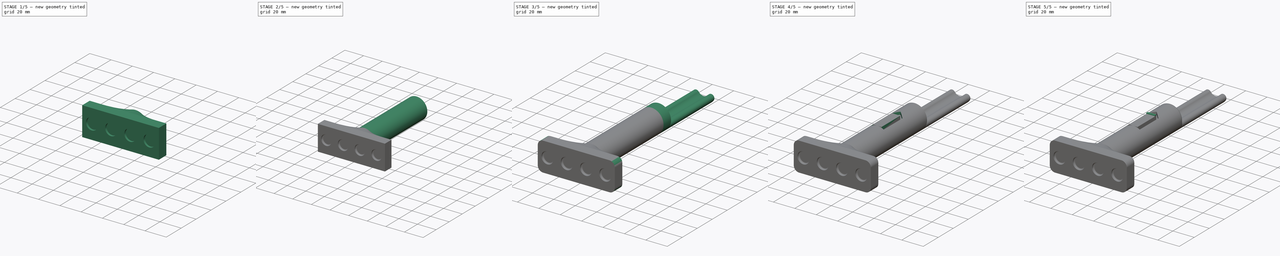
[diagram: build sequence overview — one tinted view per stage of 5, left to right]
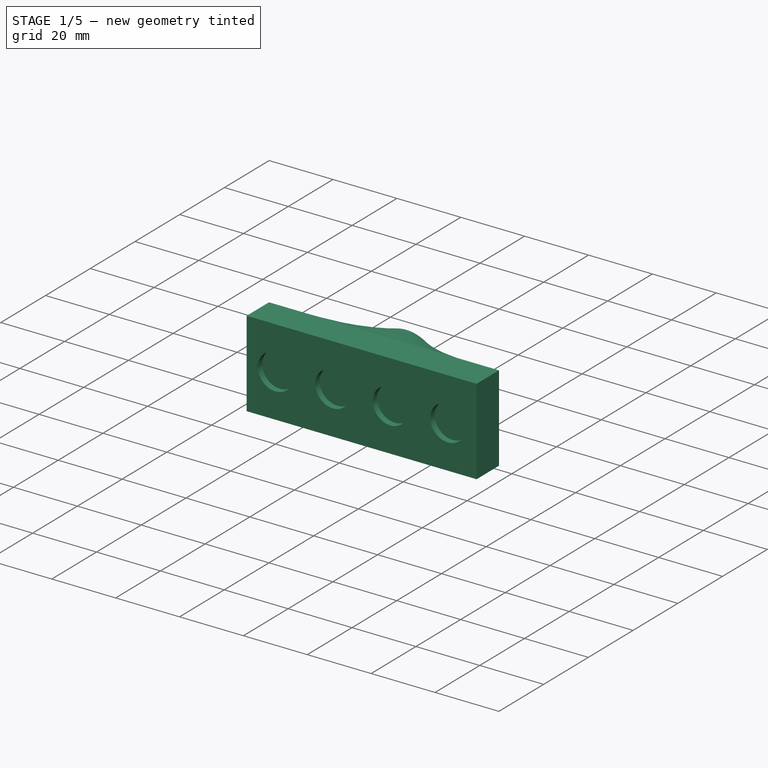
[diagram: stage 1 of 5 — iso view after this stage's code; geometry added in this stage tinted green]
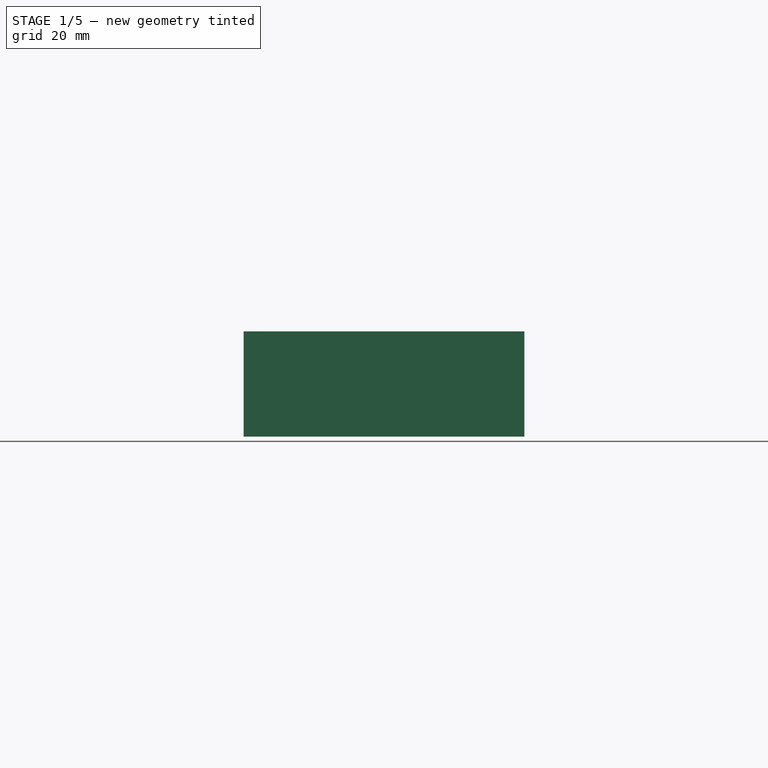
[diagram: stage 1 of 5 — front view after this stage's code; geometry added in this stage tinted green]
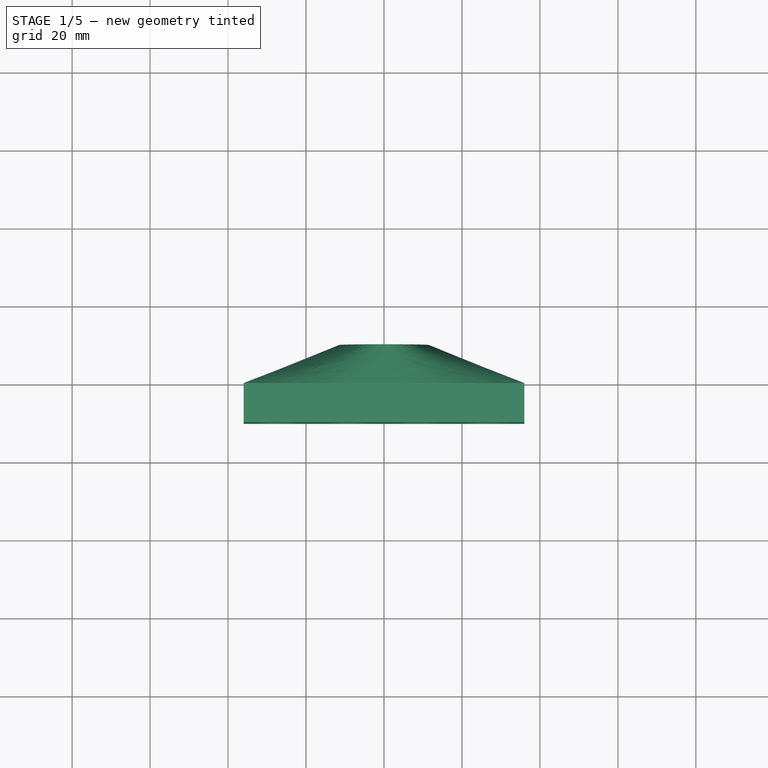
[diagram: stage 1 of 5 — top view after this stage's code; geometry added in this stage tinted green]
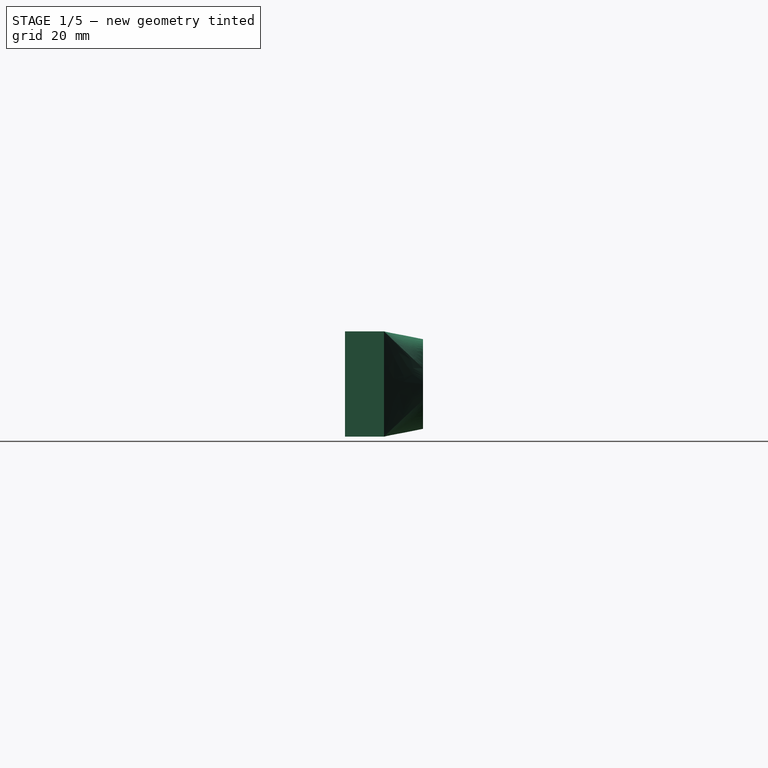
[diagram: stage 1 of 5 — right view after this stage's code; geometry added in this stage tinted green]
FCSTD DOCUMENT  (FreeCAD 0.18R4 (GitTag))
Label: plunger
License: All rights reserved
LicenseURL: http://en.wikipedia.org/wiki/All_rights_reserved
objects: Sketcher::SketchObject×13, PartDesign::Pad×6, PartDesign::Fillet×6, PartDesign::Pocket×4, PartDesign::LinearPattern×1, PartDesign::AdditiveLoft×1, PartDesign::Body×1
note: 43 computed .brp shape members not serialized (recipe doc carries the construction recipe); baked Part::Feature solids carry a one-line shape summary decoded from their .brp

FEATURE [Sketcher::SketchObject] Sketch
  MapMode = 5
  Placement = pos=(0,0,0) rot=(1,0,0;1.5708rad)
  Support = -> [XZ_Plane]
  sketch-geometry (4):
    g0: LineSegment StartX=-36 StartY=13.5 StartZ=0 EndX=36 EndY=13.5 EndZ=0
    g1: LineSegment StartX=36 StartY=13.5 StartZ=0 EndX=36 EndY=-13.5 EndZ=0
    g2: LineSegment StartX=36 StartY=-13.5 StartZ=0 EndX=-36 EndY=-13.5 EndZ=0
    g3: LineSegment StartX=-36 StartY=-13.5 StartZ=0 EndX=-36 EndY=13.5 EndZ=0
  constraints (10):
    c: Coincident(g0,g1)
    c: Coincident(g1,g2)
    c: Coincident(g2,g3)
    c: Coincident(g3,g0)
    c: Horizontal(g2)
    c: Vertical(g3)
    c: DistanceY(g1,g1) = 27
    c: DistanceX(g0,g0) = 72
    c: Symmetric(g0,g0,g-2)
    c: Symmetric(g0,g1,g-1)
FEATURE [PartDesign::Pad] Pad
  Length = 10
  Length2 = 100
  Placement = pos=(0,0,0) rot=(1,0,0;1.5708rad)
  Profile = -> Sketch
  Type = 0
FEATURE [Sketcher::SketchObject] Sketch001
  MapMode = 5
  Placement = pos=(0,-10,6.7e-15) rot=(1,0,0;1.5708rad)
  Support = -> [Pad]
  sketch-geometry (1):
    g0: Circle CenterX=-27 CenterY=0 CenterZ=0 NormalX=0 NormalY=0 NormalZ=1 AngleXU=0 Radius=5.5
  constraints (3):
    c: PointOnObject(g0,g-1)
    c: Radius(g0) = 5.5
    c: Distance(g-1,g0) = 27
FEATURE [PartDesign::Pocket] Pocket
  BaseFeature = -> Pad
  Length = 2
  Length2 = 100
  Placement = pos=(0,0,0) rot=(1,0,0;1.5708rad)
  Profile = -> Sketch001
  Type = 0
FEATURE [PartDesign::LinearPattern] LinearPattern
  BaseFeature = -> Pocket
  Direction = -> Sketch001 [H_Axis]
  Length = 54
  Occurrences = 4
  Originals = -> [Pocket]
  Placement = pos=(0,0,0) rot=(1,0,0;1.5708rad)
FEATURE [Sketcher::SketchObject] Sketch002
  Placement = pos=(0,10,0) rot=(-1,0,0;4.71239rad)
  sketch-geometry (1):
    g0: Circle CenterX=0 CenterY=0 CenterZ=0 NormalX=0 NormalY=0 NormalZ=1 AngleXU=0 Radius=11.5
  constraints (3):
    c: Radius(g0) = 11.5
    c: PointOnObject(g0,g-1)
    c: PointOnObject(g0,g-2)
FEATURE [Sketcher::SketchObject] Sketch003
  MapMode = 5
  Placement = pos=(0,0,0) rot=(-1,0,0;1.5708rad)
  Support = -> [LinearPattern]
  sketch-geometry (4):
    g0: LineSegment StartX=-36 StartY=13.5 StartZ=0 EndX=36 EndY=13.5 EndZ=0
    g1: LineSegment StartX=36 StartY=13.5 StartZ=0 EndX=36 EndY=-13.5 EndZ=0
    g2: LineSegment StartX=36 StartY=-13.5 StartZ=0 EndX=-36 EndY=-13.5 EndZ=0
    g3: LineSegment StartX=-36 StartY=-13.5 StartZ=0 EndX=-36 EndY=13.5 EndZ=0
  constraints (10):
    c: Coincident(g0,g1)
    c: Coincident(g1,g2)
    c: Coincident(g2,g3)
    c: Coincident(g3,g0)
    c: Horizontal(g2)
    c: Vertical(g3)
    c: Symmetric(g0,g0,g-2)
    c: Symmetric(g0,g1,g-1)
    c: DistanceY(g1,g1) = 27
    c: DistanceX(g0,g0) = 72
FEATURE [PartDesign::AdditiveLoft] AdditiveLoft
  BaseFeature = -> LinearPattern
  Closed = true
  Placement = pos=(0,0,0) rot=(1,0,0;1.5708rad)
  Profile = -> Sketch003
  Ruled = true
  Sections = -> [Sketch002]
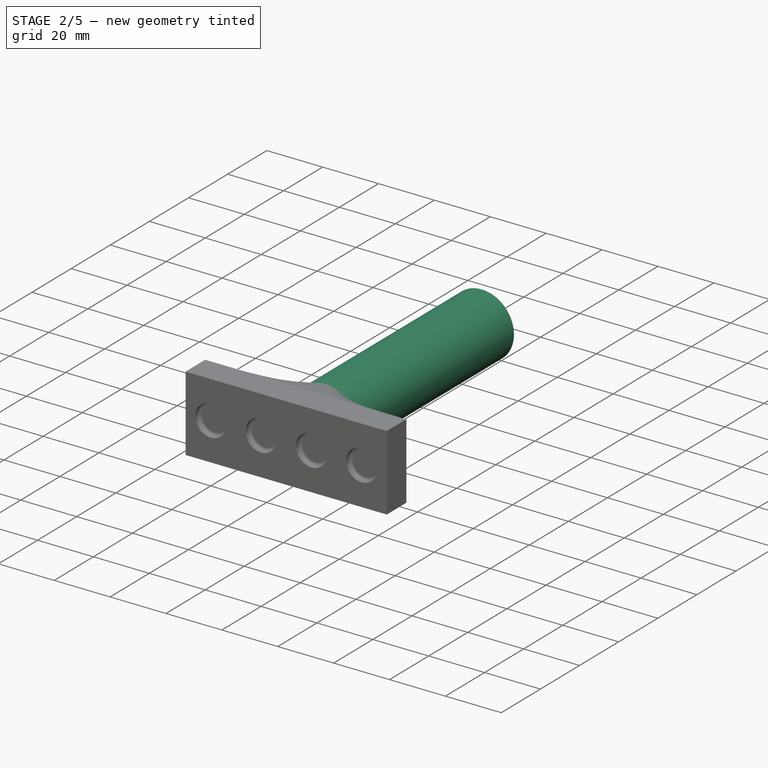
[diagram: stage 2 of 5 — iso view after this stage's code; geometry added in this stage tinted green]
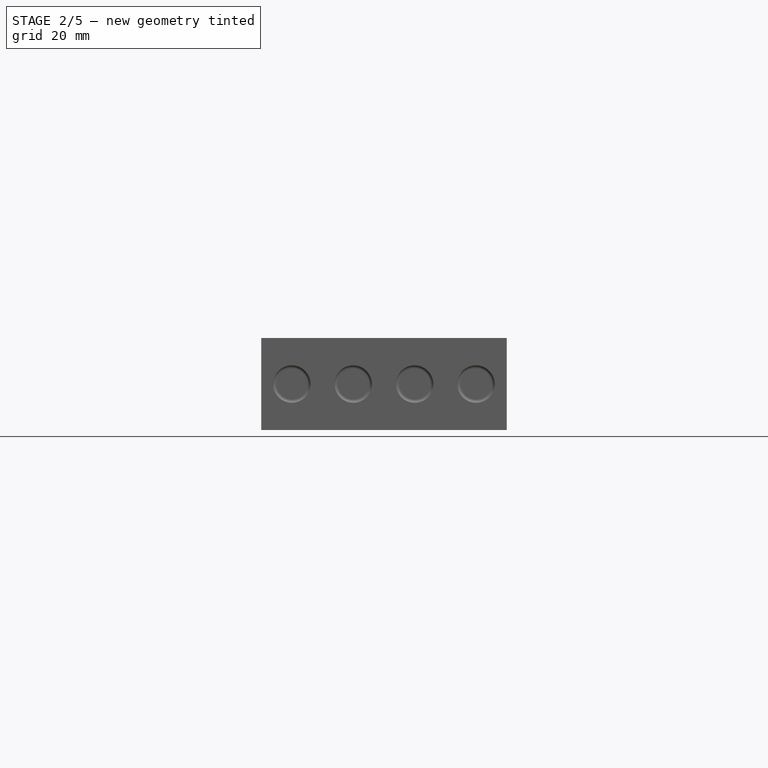
[diagram: stage 2 of 5 — front view after this stage's code; geometry added in this stage tinted green]
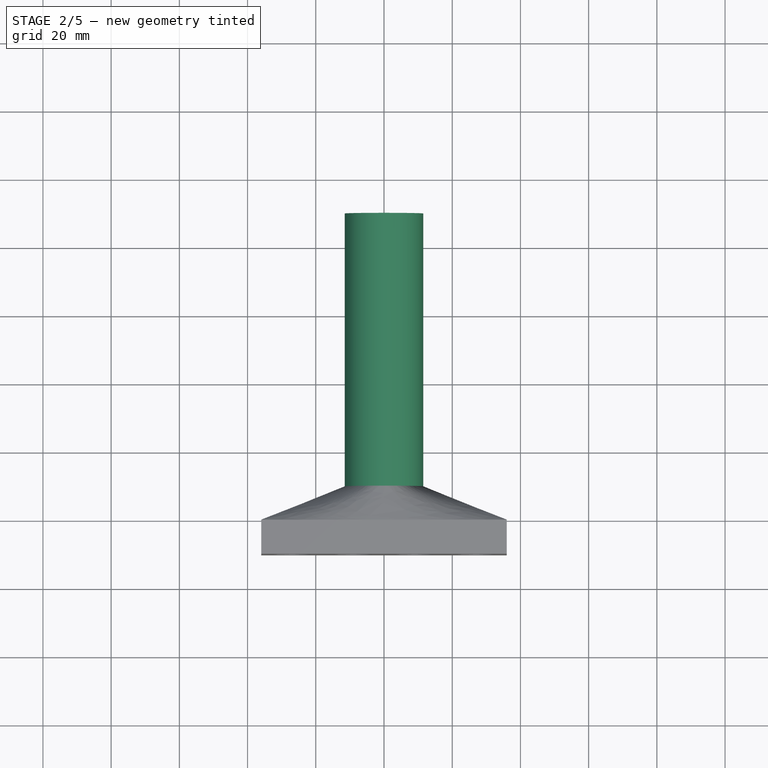
[diagram: stage 2 of 5 — top view after this stage's code; geometry added in this stage tinted green]
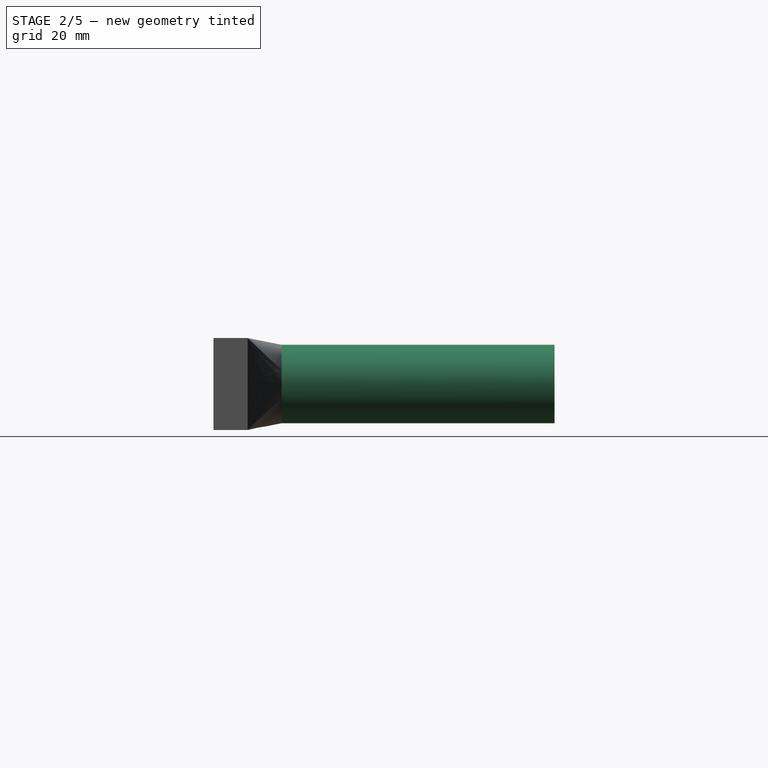
[diagram: stage 2 of 5 — right view after this stage's code; geometry added in this stage tinted green]
FEATURE [PartDesign::Fillet] Fillet
  Base = -> AdditiveLoft [Edge33,Edge35,Edge29,Edge31]
  BaseFeature = -> AdditiveLoft
  Placement = pos=(0,0,0) rot=(1,0,0;1.5708rad)
  Radius = 1
FEATURE [Sketcher::SketchObject] Sketch004
  MapMode = 5
  Placement = pos=(0,10,-5.8e-15) rot=(-1,0,0;1.5708rad)
  Support = -> [Fillet]
  sketch-geometry (1):
    g0: Circle CenterX=0 CenterY=0 CenterZ=0 NormalX=0 NormalY=0 NormalZ=1 AngleXU=0 Radius=11.5
  constraints (3):
    c: PointOnObject(g0,g-2)
    c: PointOnObject(g0,g-1)
    c: Radius(g0) = 11.5
FEATURE [PartDesign::Pad] Pad001
  BaseFeature = -> Fillet
  Length = 80
  Length2 = 100
  Placement = pos=(0,0,0) rot=(1,0,0;1.5708rad)
  Profile = -> Sketch004
  Type = 0
FEATURE [Sketcher::SketchObject] Sketch005
  MapMode = 5
  Placement = pos=(0,90,-7.21e-14) rot=(-1,0,0;1.5708rad)
  Support = -> [Pad001]
  sketch-geometry (2):
    g0: ArcOfCircle CenterX=0 CenterY=0 CenterZ=0 NormalX=0 NormalY=0 NormalZ=1 AngleXU=0 Radius=9 StartAngle=3.54102 EndAngle=5.88376
    g1: LineSegment StartX=8.29156 StartY=-3.5 StartZ=0 EndX=-8.29156 EndY=-3.5 EndZ=0
  constraints (8):
    c: PointOnObject(g0,g-1)
    c: Radius(g0) = 9
    c: Horizontal(g1)
    c: Distance(g0,g1) = 3.5
    c: PointOnObject(g1,g0)
    c: Coincident(g0,g1)
    c: Coincident(g0,g1)
    c: Symmetric(g0,g0,g-2)
FEATURE [PartDesign::Pocket] Pocket001
  BaseFeature = -> Pad001
  Length = 70
  Length2 = 100
  Placement = pos=(0,0,0) rot=(1,0,0;1.5708rad)
  Profile = -> Sketch005
  Type = 0
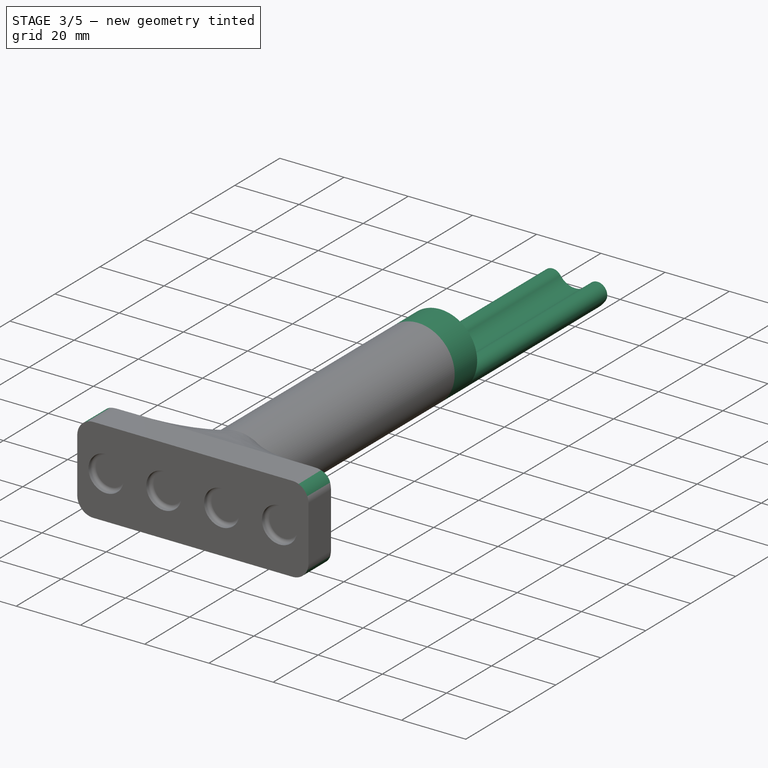
[diagram: stage 3 of 5 — iso view after this stage's code; geometry added in this stage tinted green]
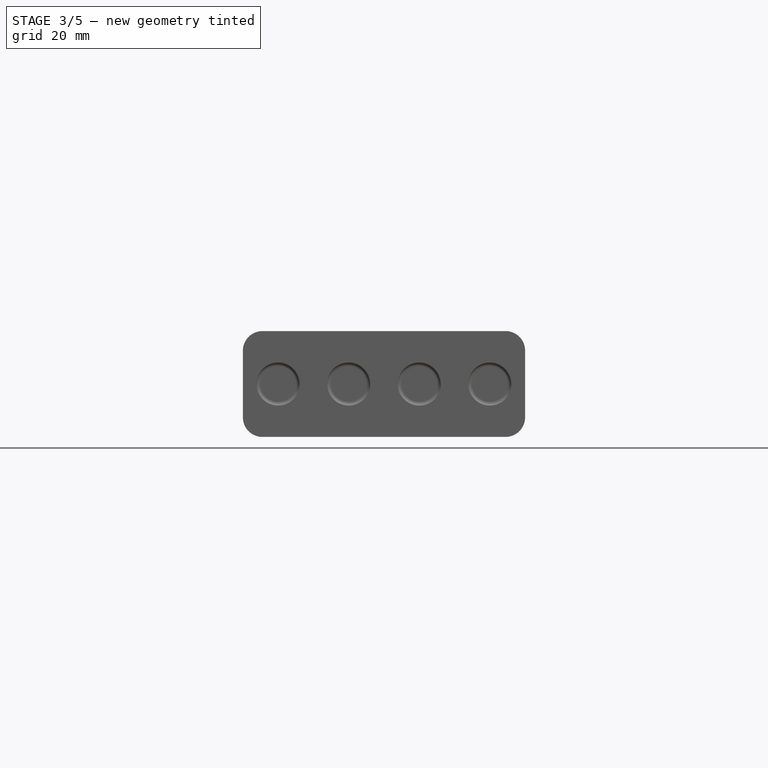
[diagram: stage 3 of 5 — front view after this stage's code; geometry added in this stage tinted green]
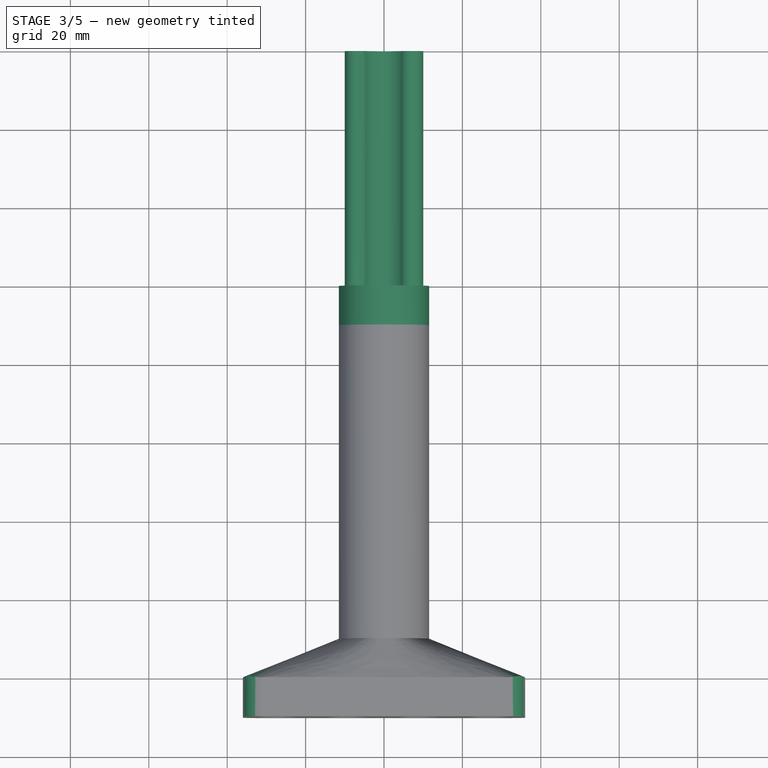
[diagram: stage 3 of 5 — top view after this stage's code; geometry added in this stage tinted green]
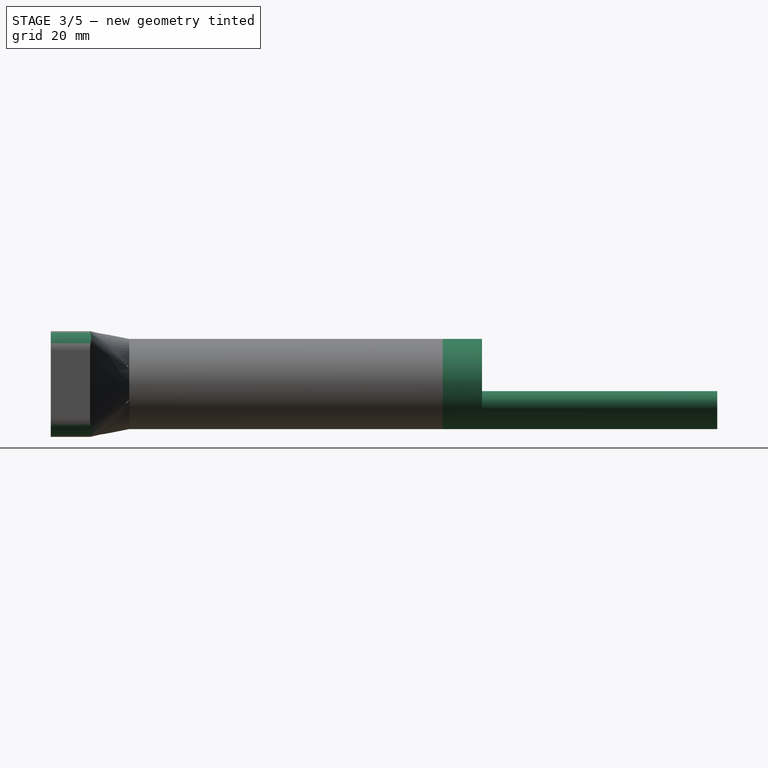
[diagram: stage 3 of 5 — right view after this stage's code; geometry added in this stage tinted green]
FEATURE [Sketcher::SketchObject] Sketch006
  MapMode = 5
  Placement = pos=(0,90,-1.12e-13) rot=(-1,0,0;1.5708rad)
  Support = -> [Pocket001]
  sketch-geometry (1):
    g0: Circle CenterX=0 CenterY=0 CenterZ=0 NormalX=0 NormalY=0 NormalZ=1 AngleXU=0 Radius=11.5
  constraints (3):
    c: Radius(g0) = 11.5
    c: PointOnObject(g0,g-1)
    c: PointOnObject(g0,g-2)
FEATURE [PartDesign::Pad] Pad002
  BaseFeature = -> Pocket001
  Length = 10
  Length2 = 100
  Placement = pos=(0,0,0) rot=(1,0,0;1.5708rad)
  Profile = -> Sketch006
  Type = 0
FEATURE [Sketcher::SketchObject] Sketch007
  MapMode = 5
  Placement = pos=(0,100,-1.871e-13) rot=(-1,0,0;1.5708rad)
  Support = -> [Pad002]
  sketch-geometry (4):
    g0: ArcOfCircle CenterX=0 CenterY=0 CenterZ=0 NormalX=0 NormalY=0 NormalZ=1 AngleXU=0 Radius=11.5 StartAngle=0.603191 EndAngle=2.5384
    g1: ArcOfCircle CenterX=-2.216e-13 CenterY=0 CenterZ=0 NormalX=0 NormalY=0 NormalZ=1 AngleXU=0 Radius=5.5 StartAngle=0.603191 EndAngle=2.5384
    g2: ArcOfCircle CenterX=7 CenterY=4.82183 CenterZ=0 NormalX=0 NormalY=0 NormalZ=1 AngleXU=0 Radius=3 StartAngle=3.74478 EndAngle=6.88638
    g3: ArcOfCircle CenterX=-7 CenterY=4.82183 CenterZ=0 NormalX=0 NormalY=0 NormalZ=1 AngleXU=0 Radius=3 StartAngle=2.5384 EndAngle=5.67999
  constraints (11):
    c: Radius(g0) = 11.5
    c: Radius(g1) = 5.5
    c: PointOnObject(g0,g-1)
    c: PointOnObject(g0,g-2)
    c: PointOnObject(g1,g-1)
    c: Symmetric(g2,g3,g-2)
    c: Tangent(g3,g1) = 1.5708
    c: Tangent(g3,g0) = -1.5708
    c: Tangent(g2,g1) = 1.5708
    c: Tangent(g2,g0) = -1.5708
    c: DistanceX(g-1,g2) = 7
FEATURE [PartDesign::Pad] Pad003
  BaseFeature = -> Pad002
  Length = 60
  Length2 = 100
  Placement = pos=(0,0,0) rot=(1,0,0;1.5708rad)
  Profile = -> Sketch007
  Type = 0
FEATURE [PartDesign::Fillet] Fillet001
  Base = -> Pad003 [Edge31,Edge28,Edge36,Edge30]
  BaseFeature = -> Pad003
  Placement = pos=(0,0,0) rot=(1,0,0;1.5708rad)
  Radius = 5
FEATURE [PartDesign::Fillet] Fillet002
  Base = -> Fillet001 [Edge7,Edge1,Edge5,Edge25]
  BaseFeature = -> Fillet001
  Placement = pos=(0,0,0) rot=(1,0,0;1.5708rad)
  Radius = 5
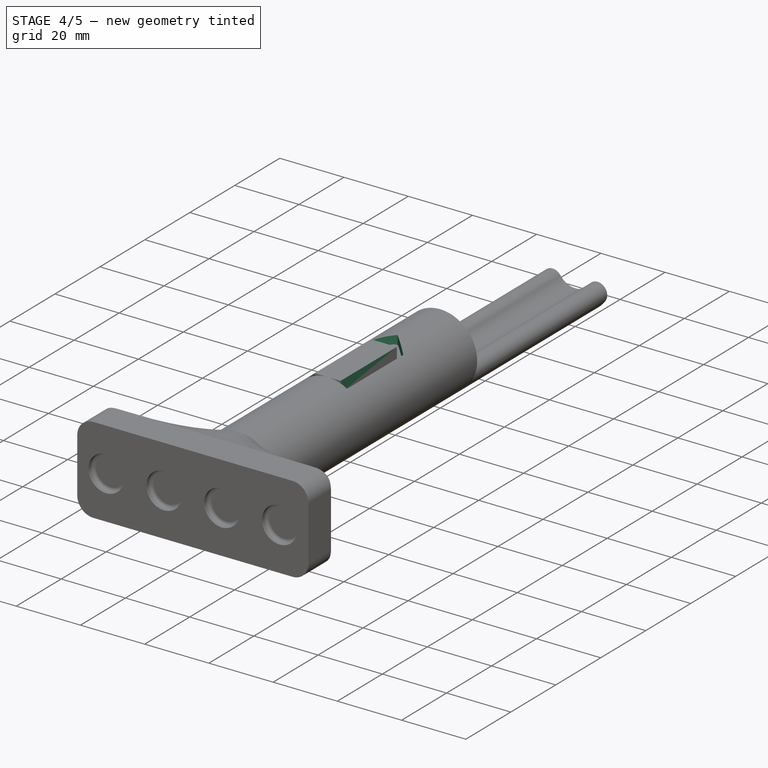
[diagram: stage 4 of 5 — iso view after this stage's code; geometry added in this stage tinted green]
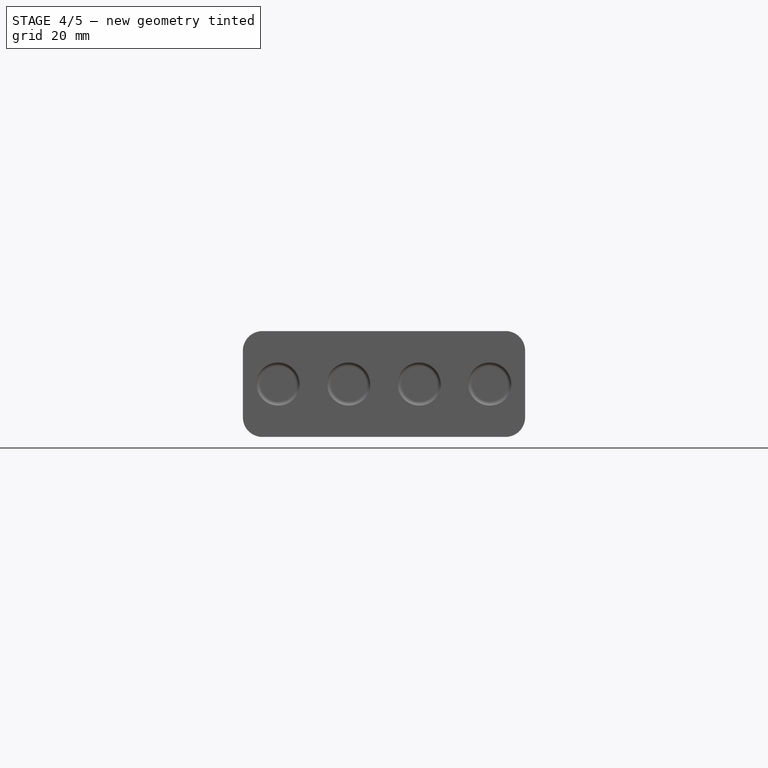
[diagram: stage 4 of 5 — front view after this stage's code; geometry added in this stage tinted green]
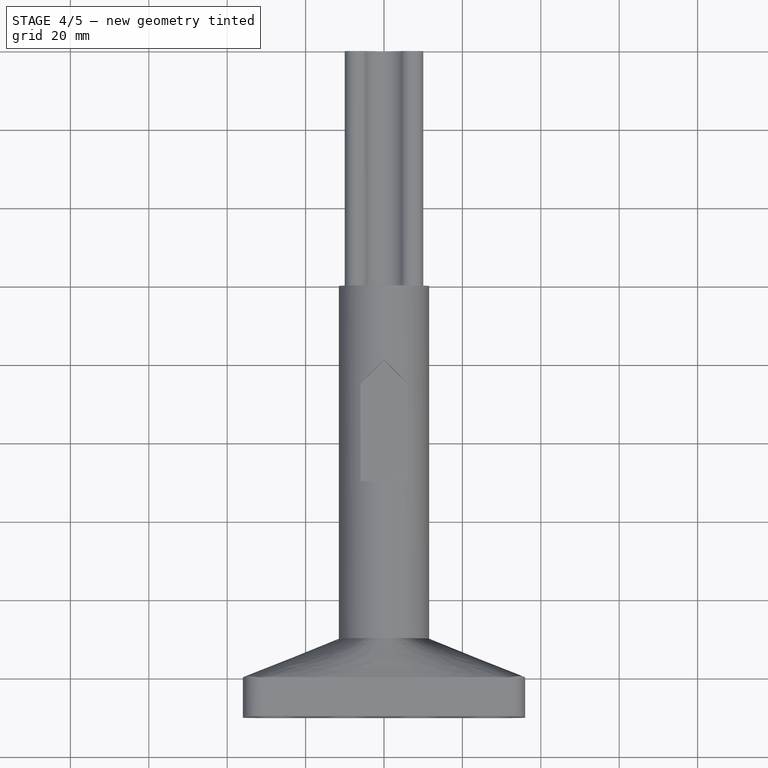
[diagram: stage 4 of 5 — top view after this stage's code; geometry added in this stage tinted green]
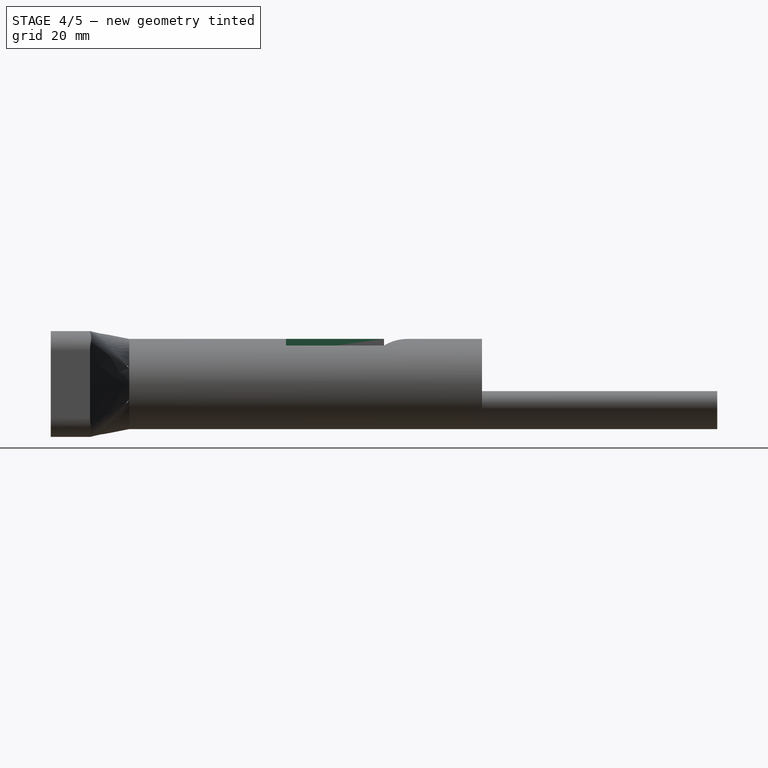
[diagram: stage 4 of 5 — right view after this stage's code; geometry added in this stage tinted green]
FEATURE [Sketcher::SketchObject] Sketch008
  Placement = pos=(0,0,20) rot=(0,0,1;0rad)
  sketch-geometry (5):
    g0: LineSegment StartX=6 StartY=75 StartZ=0 EndX=6 EndY=50 EndZ=0
    g1: LineSegment StartX=6 StartY=50 StartZ=0 EndX=-6 EndY=50 EndZ=0
    g2: LineSegment StartX=-6 StartY=50 StartZ=0 EndX=-6 EndY=75 EndZ=0
    g3: LineSegment StartX=-6 StartY=75 StartZ=0 EndX=0 EndY=81 EndZ=0
    g4: LineSegment StartX=6 StartY=75 StartZ=0 EndX=0 EndY=81 EndZ=0
  constraints (14):
    c: Coincident(g0,g1)
    c: Coincident(g1,g2)
    c: Horizontal(g1)
    c: Vertical(g0)
    c: Vertical(g2)
    c: DistanceY(g0,g0) = 25
    c: DistanceX(g2,g0) = 12
    c: Symmetric(g0,g2,g-2)
    c: DistanceY(g-1,g0) = 50
    c: PointOnObject(g3,g-2)
    c: Coincident(g4,g3)
    c: DistanceY(g0,g3) = 6
    c: Coincident(g4,g0)
    c: Coincident(g3,g2)
FEATURE [Sketcher::SketchObject] CopySketch008
  Placement = pos=(0,0,20) rot=(0,0,1;0rad)
  sketch-geometry (5):
    g0: LineSegment StartX=6 StartY=75 StartZ=0 EndX=6 EndY=50 EndZ=0
    g1: LineSegment StartX=6 StartY=50 StartZ=0 EndX=-6 EndY=50 EndZ=0
    g2: LineSegment StartX=-6 StartY=50 StartZ=0 EndX=-6 EndY=75 EndZ=0
    g3: LineSegment StartX=-6 StartY=75 StartZ=0 EndX=0 EndY=81 EndZ=0
    g4: LineSegment StartX=6 StartY=75 StartZ=0 EndX=0 EndY=81 EndZ=0
  constraints (14):
    c: Coincident(g0,g1)
    c: Coincident(g1,g2)
    c: Horizontal(g1)
    c: Vertical(g0)
    c: Vertical(g2)
    c: DistanceY(g0,g0) = 25
    c: DistanceX(g2,g0) = 12
    c: Symmetric(g0,g2,g-2)
    c: DistanceY(g-1,g0) = 50
    c: PointOnObject(g3,g-2)
    c: Coincident(g4,g3)
    c: DistanceY(g0,g3) = 6
    c: Coincident(g4,g0)
    c: Coincident(g3,g2)
FEATURE [PartDesign::Pocket] Pocket002
  BaseFeature = -> Fillet002
  Length = 25
  Length2 = 100
  Placement = pos=(0,0,0) rot=(1,0,0;1.5708rad)
  Profile = -> CopySketch008
  Reversed = true
  Type = 0
FEATURE [Sketcher::SketchObject] CopySketch008001  label="CopySketch009"
  Placement = pos=(0,0,20) rot=(0,0,1;0rad)
  sketch-geometry (5):
    g0: LineSegment StartX=6 StartY=75 StartZ=0 EndX=6 EndY=50 EndZ=0
    g1: LineSegment StartX=6 StartY=50 StartZ=0 EndX=-6 EndY=50 EndZ=0
    g2: LineSegment StartX=-6 StartY=50 StartZ=0 EndX=-6 EndY=75 EndZ=0
    g3: LineSegment StartX=-6 StartY=75 StartZ=0 EndX=0 EndY=81 EndZ=0
    g4: LineSegment StartX=6 StartY=75 StartZ=0 EndX=0 EndY=81 EndZ=0
  constraints (14):
    c: Coincident(g0,g1)
    c: Coincident(g1,g2)
    c: Horizontal(g1)
    c: Vertical(g0)
    c: Vertical(g2)
    c: DistanceY(g0,g0) = 25
    c: DistanceX(g2,g0) = 12
    c: Symmetric(g0,g2,g-2)
    c: DistanceY(g-1,g0) = 50
    c: PointOnObject(g3,g-2)
    c: Coincident(g4,g3)
    c: DistanceY(g0,g3) = 6
    c: Coincident(g4,g0)
    c: Coincident(g3,g2)
FEATURE [PartDesign::Pocket] Pocket003
  BaseFeature = -> Pocket002
  Length = 15
  Length2 = 100
  Placement = pos=(0,0,0) rot=(1,0,0;1.5708rad)
  Profile = -> CopySketch008001
  Type = 0
FEATURE [Sketcher::SketchObject] Sketch009
  MapMode = 5
  Placement = pos=(0,8.7e-15,3.5) rot=(0,0,1;3.14159rad)
  Support = -> [Pocket003]
  sketch-geometry (4):
    g0: LineSegment StartX=-4 StartY=-50 StartZ=0 EndX=4 EndY=-50 EndZ=0
    g1: LineSegment StartX=4 StartY=-50 StartZ=0 EndX=4 EndY=-75 EndZ=0
    g2: LineSegment StartX=4 StartY=-75 StartZ=0 EndX=-4 EndY=-75 EndZ=0
    g3: LineSegment StartX=-4 StartY=-75 StartZ=0 EndX=-4 EndY=-50 EndZ=0
  constraints (11):
    c: Coincident(g0,g1)
    c: Coincident(g1,g2)
    c: Coincident(g2,g3)
    c: Coincident(g3,g0)
    c: Horizontal(g0)
    c: Vertical(g1)
    c: Vertical(g3)
    c: DistanceY(g-1,g0) = -50
    c: DistanceX(g2,g2) = 8
    c: DistanceY(g1,g1) = 25
    c: Symmetric(g1,g2,g-2)
FEATURE [PartDesign::Pad] Pad004
  BaseFeature = -> Pocket003
  Length = 8
  Length2 = 100
  Placement = pos=(0,0,0) rot=(1,0,0;1.5708rad)
  Profile = -> Sketch009
  Type = 0
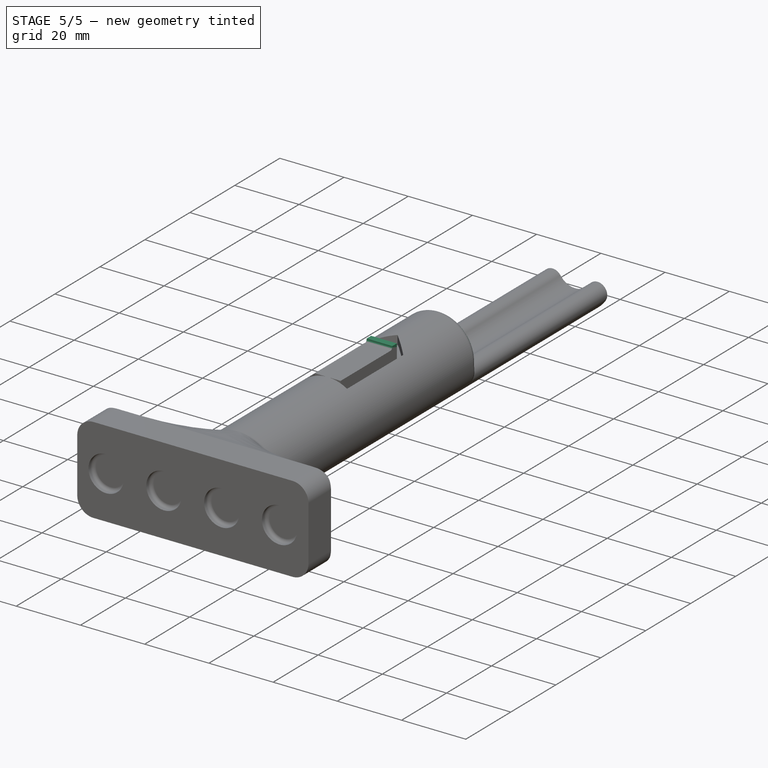
[diagram: stage 5 of 5 — iso view after this stage's code; geometry added in this stage tinted green]
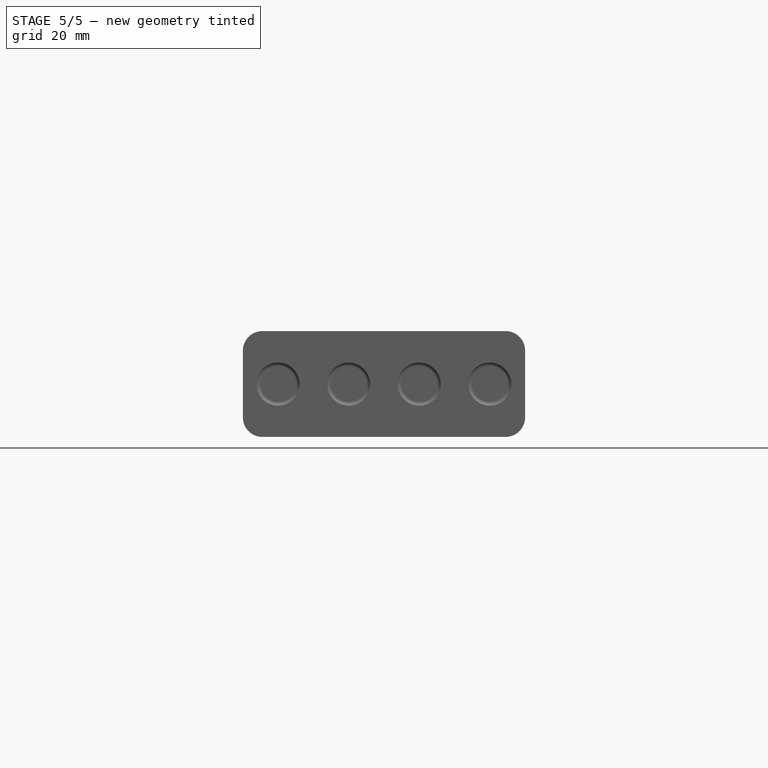
[diagram: stage 5 of 5 — front view after this stage's code; geometry added in this stage tinted green]
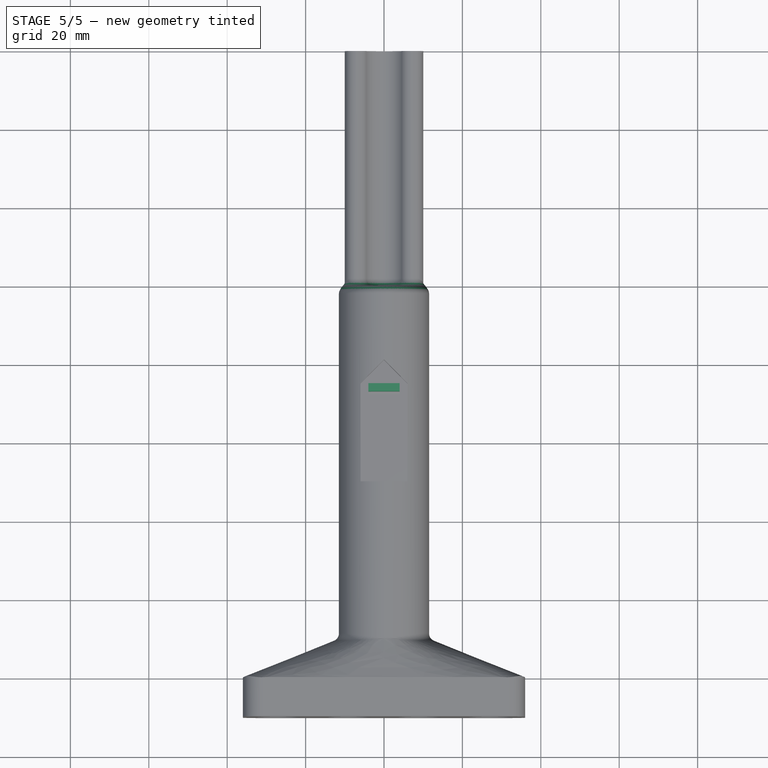
[diagram: stage 5 of 5 — top view after this stage's code; geometry added in this stage tinted green]
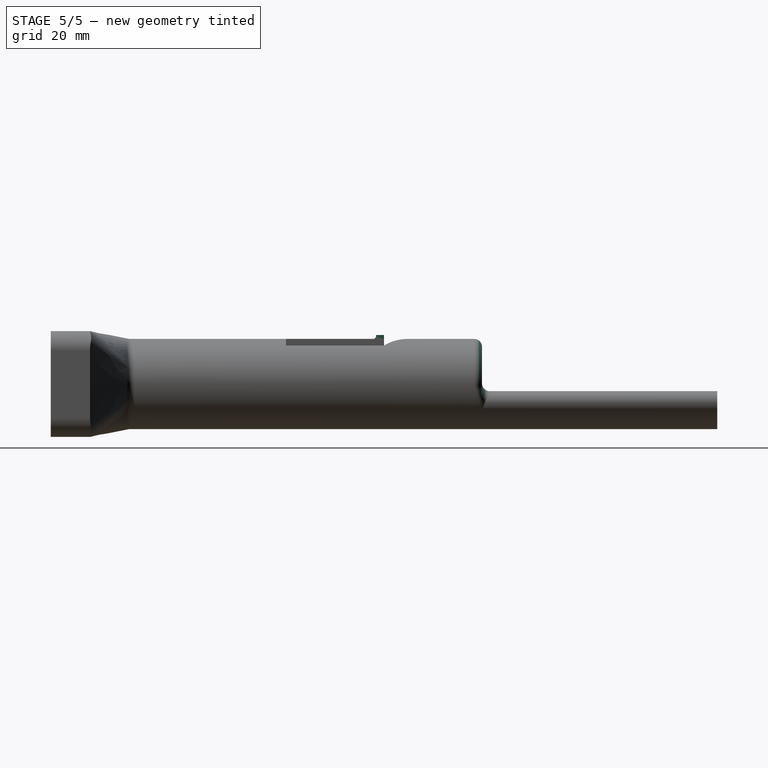
[diagram: stage 5 of 5 — right view after this stage's code; geometry added in this stage tinted green]
FEATURE [Sketcher::SketchObject] Sketch010
  ExternalGeometry = -> [Pad004]
  MapMode = 5
  Placement = pos=(0,75,-2.207e-13) rot=(-1,0,0;1.5708rad)
  Support = -> [Pad004]
  sketch-geometry (4):
    g0: LineSegment StartX=-4 StartY=-11.5 StartZ=0 EndX=4 EndY=-11.5 EndZ=0
    g1: LineSegment StartX=4 StartY=-11.5 StartZ=0 EndX=4 EndY=-12.5 EndZ=0
    g2: LineSegment StartX=4 StartY=-12.5 StartZ=0 EndX=-4 EndY=-12.5 EndZ=0
    g3: LineSegment StartX=-4 StartY=-12.5 StartZ=0 EndX=-4 EndY=-11.5 EndZ=0
  constraints (11):
    c: Coincident(g0,g1)
    c: Coincident(g1,g2)
    c: Coincident(g2,g3)
    c: Coincident(g3,g0)
    c: Horizontal(g0)
    c: Horizontal(g2)
    c: Vertical(g1)
    c: Vertical(g3)
    c: Coincident(g0,g-3)
    c: DistanceX(g2,g2) = 8
    c: DistanceY(g3,g3) = 1
FEATURE [PartDesign::Pad] Pad005
  BaseFeature = -> Pad004
  Length = 2
  Length2 = 100
  Placement = pos=(0,0,0) rot=(1,0,0;1.5708rad)
  Profile = -> Sketch010
  Reversed = true
  Type = 0
FEATURE [PartDesign::Fillet] Fillet003
  Base = -> Pad005 [Edge119]
  BaseFeature = -> Pad005
  Placement = pos=(0,0,0) rot=(1,0,0;1.5708rad)
  Radius = 0.8
FEATURE [PartDesign::Fillet] Fillet004
  Base = -> Fillet003 [Face36]
  BaseFeature = -> Fillet003
  Placement = pos=(0,0,0) rot=(1,0,0;1.5708rad)
  Radius = 2
FEATURE [PartDesign::Fillet] Fillet005
  Base = -> Fillet004 [Edge15]
  BaseFeature = -> Fillet004
  Placement = pos=(0,0,0) rot=(1,0,0;1.5708rad)
  Radius = 2
FEATURE [PartDesign::Body] Body
  Group = -> [Sketch,Pad,Sketch001,Pocket,LinearPattern,Sketch003,AdditiveLoft,Fillet,Sketch004,Pad001,Sketch005,Pocket001,Sketch006,Pad002,Sketch007,Pad003,Fillet001,Fillet002,Pocket002,Pocket003,Sketch009,Pad004,Sketch010,Pad005,Fillet003,Fillet004,Fillet005]
  Origin = -> Origin
  Tip = -> Fillet005
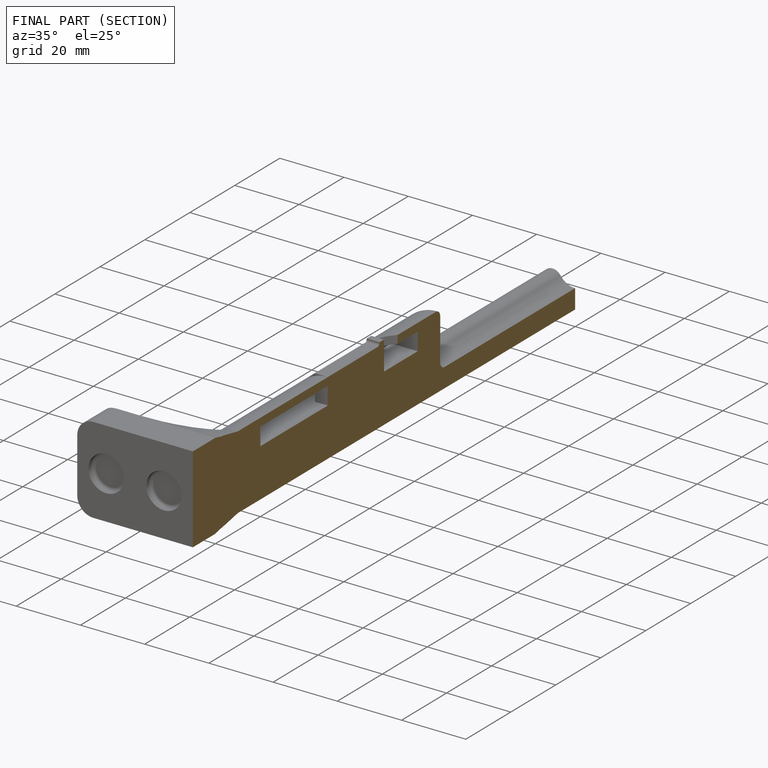
[diagram: finished part — half-section view (interior)]
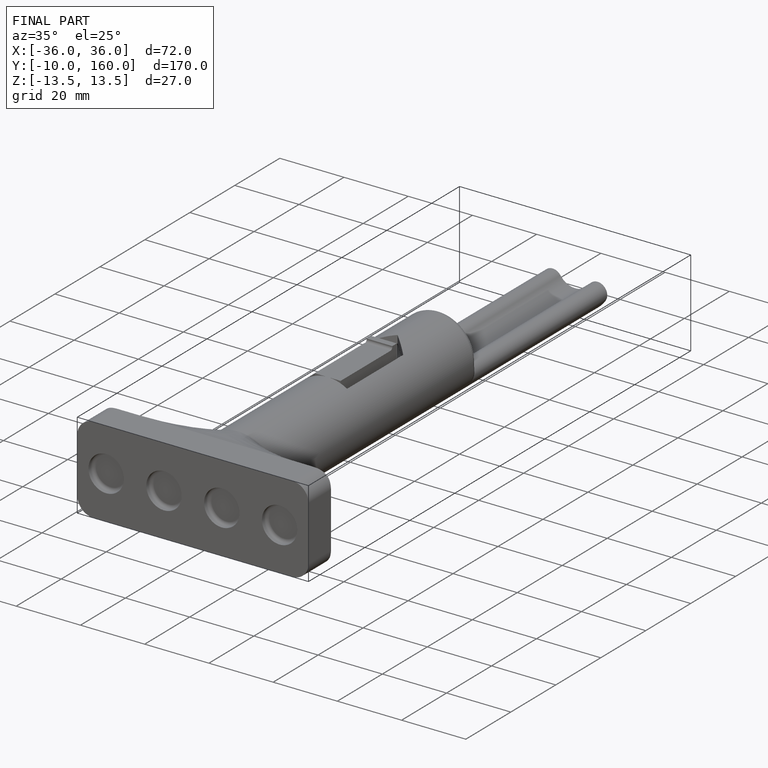
[diagram: finished part — iso view with bounding-box wireframe]
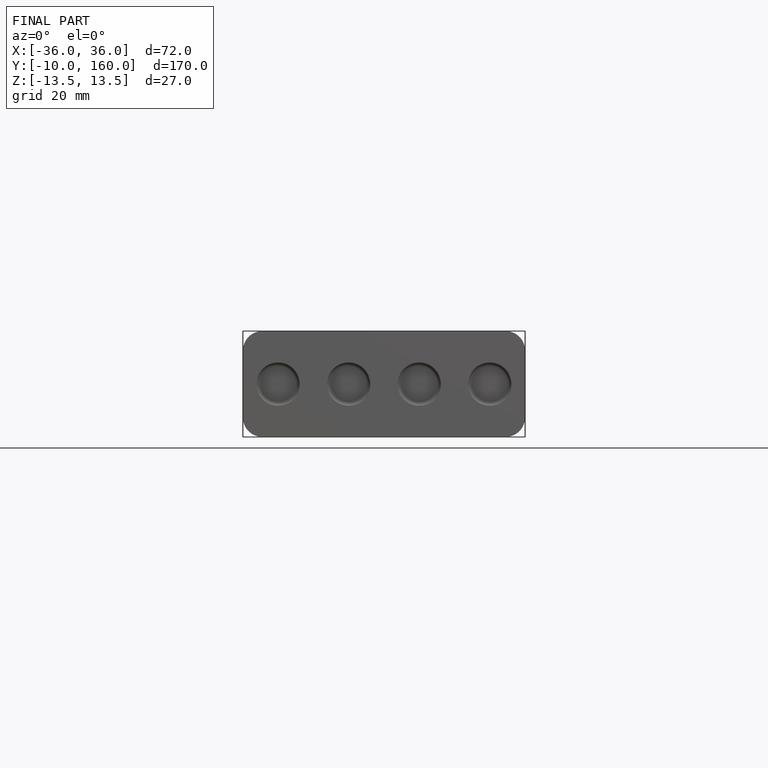
[diagram: finished part — front view with bounding-box wireframe]
